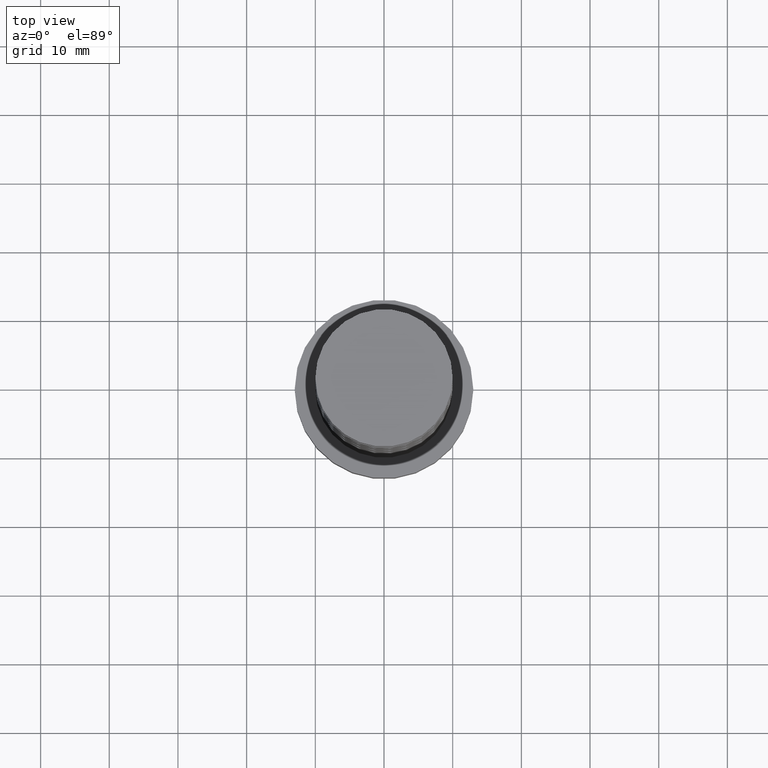
[diagram: clean part render]
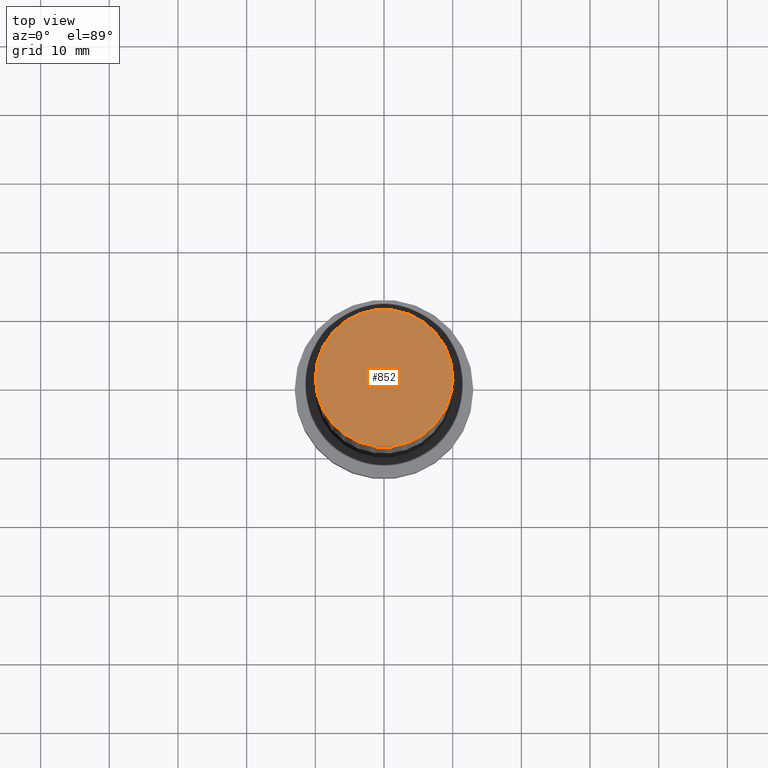
[diagram: same view with one face highlighted and labeled with its STEP entity id]
A machine part, top view. The second image highlights one B-rep face of the part: STEP entity #852.
In plain terms, the highlighted planar face has unit normal (0, 0, 1).
Its self-contained STEP definition (entity closure, byte-faithful):
#24 = AXIS2_PLACEMENT_3D ( 'NONE', #974, #731, #507 ) ;
#112 = CIRCLE ( 'NONE', #966, 10.00000000000000178 ) ;
#146 = DIRECTION ( 'NONE',  ( 1.000000000000000000, 0.000000000000000000, 0.000000000000000000 ) ) ;
#176 = CARTESIAN_POINT ( 'NONE',  ( -10.00000000000000178, 0.000000000000000000, 100.0000000000000000 ) ) ;
#183 = DIRECTION ( 'NONE',  ( 0.000000000000000000, 0.000000000000000000, 1.000000000000000000 ) ) ;
#186 = EDGE_LOOP ( 'NONE', ( #1023, #1236 ) ) ;
#197 = CIRCLE ( 'NONE', #1039, 10.00000000000000178 ) ;
#236 = EDGE_CURVE ( 'NONE', #934, #1450, #197, .T. ) ;
#283 = CARTESIAN_POINT ( 'NONE',  ( 10.00000000000000178, 1.224646799147353454E-15, 100.0000000000000000 ) ) ;
#486 = PLANE ( 'NONE',  #24 ) ;
#493 = DIRECTION ( 'NONE',  ( 1.000000000000000000, 0.000000000000000000, 0.000000000000000000 ) ) ;
#507 = DIRECTION ( 'NONE',  ( 1.000000000000000000, 0.000000000000000000, -0.000000000000000000 ) ) ;
#731 = DIRECTION ( 'NONE',  ( 0.000000000000000000, 0.000000000000000000, 1.000000000000000000 ) ) ;
#801 = CARTESIAN_POINT ( 'NONE',  ( 0.000000000000000000, 0.000000000000000000, 100.0000000000000000 ) ) ;
#806 = DIRECTION ( 'NONE',  ( 0.000000000000000000, 0.000000000000000000, 1.000000000000000000 ) ) ;
#838 = EDGE_CURVE ( 'NONE', #1450, #934, #112, .T. ) ;
#852 = ADVANCED_FACE ( 'NONE', ( #1091 ), #486, .T. ) ;
#934 = VERTEX_POINT ( 'NONE', #283 ) ;
#966 = AXIS2_PLACEMENT_3D ( 'NONE', #801, #806, #493 ) ;
#974 = CARTESIAN_POINT ( 'NONE',  ( 0.000000000000000000, 0.000000000000000000, 100.0000000000000000 ) ) ;
#1023 = ORIENTED_EDGE ( 'NONE', *, *, #838, .T. ) ;
#1039 = AXIS2_PLACEMENT_3D ( 'NONE', #1426, #183, #146 ) ;
#1091 = FACE_OUTER_BOUND ( 'NONE', #186, .T. ) ;
#1236 = ORIENTED_EDGE ( 'NONE', *, *, #236, .T. ) ;
#1426 = CARTESIAN_POINT ( 'NONE',  ( 0.000000000000000000, 0.000000000000000000, 100.0000000000000000 ) ) ;
#1450 = VERTEX_POINT ( 'NONE', #176 ) ;